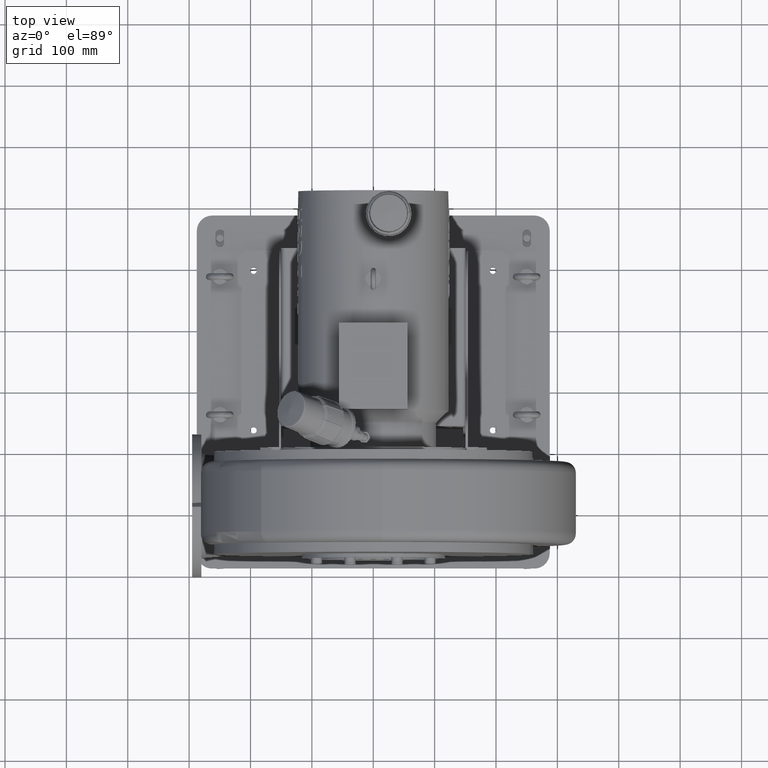
[diagram: clean part render]
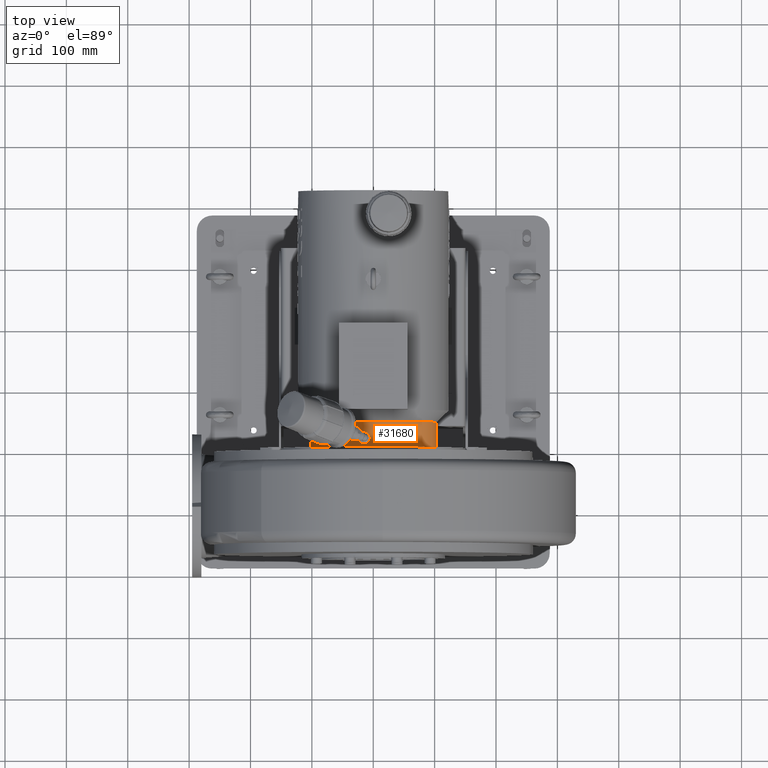
[diagram: same view with one face highlighted and labeled with its STEP entity id]
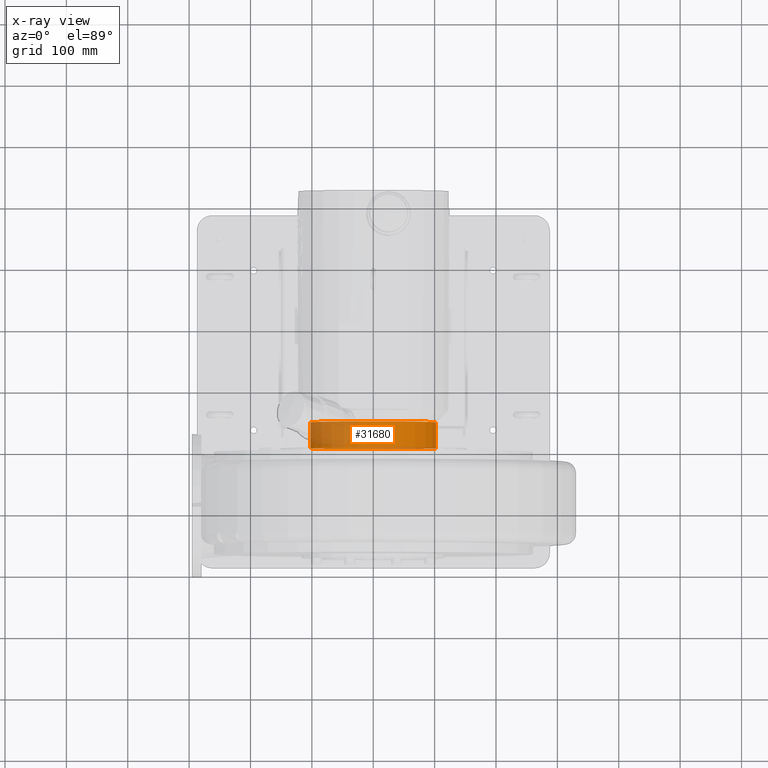
[diagram: x-ray of the same camera — body ghosted, the highlighted face saturated]
A machine part, top view. The second image highlights one B-rep face of the part: STEP entity #31680.
The next image is the same camera in x-ray: the body ghosted, the highlighted face saturated — about 38% of this face is hidden behind the body in this view.
In plain terms, the highlighted cylindrical surface (bore or boss wall) has radius 103 mm, axis along (-0, 1, 0).
Its self-contained STEP definition (entity closure, byte-faithful):
#30891=CARTESIAN_POINT('',(9.676151E-012,-56.500000000004498,503.00000000002001));
#30892=VERTEX_POINT('',#30891);
#30893=CARTESIAN_POINT('',(7.852222E-012,-56.500000000003894,400.00000000001995));
#30894=DIRECTION('',(0.0,1.0,0.0));
#30895=DIRECTION('',(0.0,0.0,1.0));
#30896=AXIS2_PLACEMENT_3D('',#30893,#30894,#30895);
#30897=CIRCLE('',#30896,103.0);
#30898=EDGE_CURVE('',#30892,#30892,#30897,.T.);
#30970=CARTESIAN_POINT('',(9.686944E-012,-98.500000000004505,503.00000000001972));
#30971=VERTEX_POINT('',#30970);
#30972=CARTESIAN_POINT('',(7.863014E-012,-98.500000000003851,400.00000000001978));
#30973=DIRECTION('',(0.0,1.0,0.0));
#30974=DIRECTION('',(0.0,0.0,1.0));
#30975=AXIS2_PLACEMENT_3D('',#30972,#30973,#30974);
#30976=CIRCLE('',#30975,103.0);
#30977=EDGE_CURVE('',#30971,#30971,#30976,.T.);
#31628=CARTESIAN_POINT('',(7.857618E-012,-77.500000000003837,400.0000000000199));
#31629=DIRECTION('',(-2.569730E-016,1.0,6.245005E-015));
#31630=DIRECTION('',(0.0,0.0,1.0));
#31631=AXIS2_PLACEMENT_3D('',#31628,#31629,#31630);
#31632=CYLINDRICAL_SURFACE('',#31631,103.0);
#31633=ORIENTED_EDGE('',*,*,#30977,.T.);
#31634=EDGE_LOOP('',(#31633));
#31635=FACE_OUTER_BOUND('',#31634,.T.);
#31636=ORIENTED_EDGE('',*,*,#30898,.F.);
#31637=EDGE_LOOP('',(#31636));
#31638=FACE_BOUND('',#31637,.T.);
#31639=CARTESIAN_POINT('',(-24.999999999990372,-83.500000000004491,499.91996797439464));
#31640=VERTEX_POINT('',#31639);
#31641=CARTESIAN_POINT('',(-24.999999999990369,-83.500000000004476,499.91996797439469));
#31642=CARTESIAN_POINT('',(-24.999999999990369,-82.243397748357054,499.91996797439469));
#31643=CARTESIAN_POINT('',(-24.748573381951267,-80.906130037101903,499.98390152712159));
#31644=CARTESIAN_POINT('',(-23.733967054743559,-78.452162103715409,500.22959270545664));
#31645=CARTESIAN_POINT('',(-22.971037411615804,-77.335206529633297,500.4098300621929));
#31646=CARTESIAN_POINT('',(-21.206166459346253,-75.557797419325411,500.79746327201264));
#31647=CARTESIAN_POINT('',(-20.079857741879618,-74.783011513137126,501.03157092429507));
#31648=CARTESIAN_POINT('',(-17.6091038683806,-73.754056180338097,501.49137141250606));
#31649=CARTESIAN_POINT('',(-16.264375893878874,-73.500000000004491,501.71579701589542));
#31650=CARTESIAN_POINT('',(-13.749792607284935,-73.500000000004491,502.08594462115542));
#31651=CARTESIAN_POINT('',(-12.411640907521033,-73.748975430677433,502.25698545459477));
#31652=CARTESIAN_POINT('',(-9.944441830097858,-74.769397777131488,502.52632823244448));
#31653=CARTESIAN_POINT('',(-8.815608404780411,-75.541014293055952,502.62594577889109));
#31654=CARTESIAN_POINT('',(-7.038459351093197,-77.32064511541715,502.76307187454705));
#31655=CARTESIAN_POINT('',(-6.269987808149505,-78.444098174221409,502.81025131521346));
#31656=CARTESIAN_POINT('',(-5.250757830650184,-80.906250967429713,502.86734206807665));
#31657=CARTESIAN_POINT('',(-4.99999999999032,-82.244920265652411,502.87856919691342));
#31658=CARTESIAN_POINT('',(-4.999999999990319,-84.755079734356599,502.87856919691336));
#31659=CARTESIAN_POINT('',(-5.250757830650187,-86.093749032579282,502.86734206807665));
#31660=CARTESIAN_POINT('',(-6.269987808149516,-88.555901825787586,502.81025131521346));
#31661=CARTESIAN_POINT('',(-7.038459351093191,-89.679354884591831,502.76307187454699));
#31662=CARTESIAN_POINT('',(-8.815608404780402,-91.458985706953015,502.62594577889104));
#31663=CARTESIAN_POINT('',(-9.944441830097839,-92.230602222877494,502.52632823244437));
#31664=CARTESIAN_POINT('',(-12.411640907521013,-93.251024569331548,502.25698545459466));
#31665=CARTESIAN_POINT('',(-13.749792607284929,-93.500000000004491,502.08594462115525));
#31666=CARTESIAN_POINT('',(-16.264375893878867,-93.500000000004491,501.7157970158953));
#31667=CARTESIAN_POINT('',(-17.6091038683806,-93.245943819670885,501.491371412506));
#31668=CARTESIAN_POINT('',(-20.079857741879614,-92.216988486871855,501.0315709242949));
#31669=CARTESIAN_POINT('',(-21.206166459346246,-91.442202580683556,500.79746327201258));
#31670=CARTESIAN_POINT('',(-22.971037411615796,-89.664793470375656,500.40983006219284));
#31671=CARTESIAN_POINT('',(-23.733967054743559,-88.54783789629353,500.22959270545653));
#31672=CARTESIAN_POINT('',(-24.748573381951257,-86.093869962907064,499.98390152712159));
#31673=CARTESIAN_POINT('',(-24.999999999990369,-84.756602251651884,499.91996797439469));
#31674=CARTESIAN_POINT('',(-24.999999999990369,-83.500000000004476,499.91996797439469));
#31675=B_SPLINE_CURVE_WITH_KNOTS('',3,(#31641,#31642,#31643,#31644,#31645,#31646,#31647,#31648,#31649,#31650,#31651,#31652,#31653,#31654,#31655,#31656,#31657,#31658,#31659,#31660,#31661,#31662,#31663,#31664,#31665,#31666,#31667,#31668,#31669,#31670,#31671,#31672,#31673,#31674),.UNSPECIFIED.,.T.,.U.,(4,2,2,2,2,2,2,2,2,2,2,2,2,2,2,2,4),(0.0,0.376980675494225,0.75396135098845,1.137361561368724,1.520761771748999,1.899865628204272,2.278969484659545,2.655493404965177,3.03201732527081,3.408541245576442,3.785065165882075,4.164169022337347,4.543272878792621,4.926673089172896,5.31007329955317,5.687053975047395,6.064034650541619),.UNSPECIFIED.);
#31676=EDGE_CURVE('',#31640,#31640,#31675,.T.);
#31677=ORIENTED_EDGE('',*,*,#31676,.T.);
#31678=EDGE_LOOP('',(#31677));
#31679=FACE_BOUND('',#31678,.T.);
#31680=ADVANCED_FACE('',(#31635,#31638,#31679),#31632,.T.);